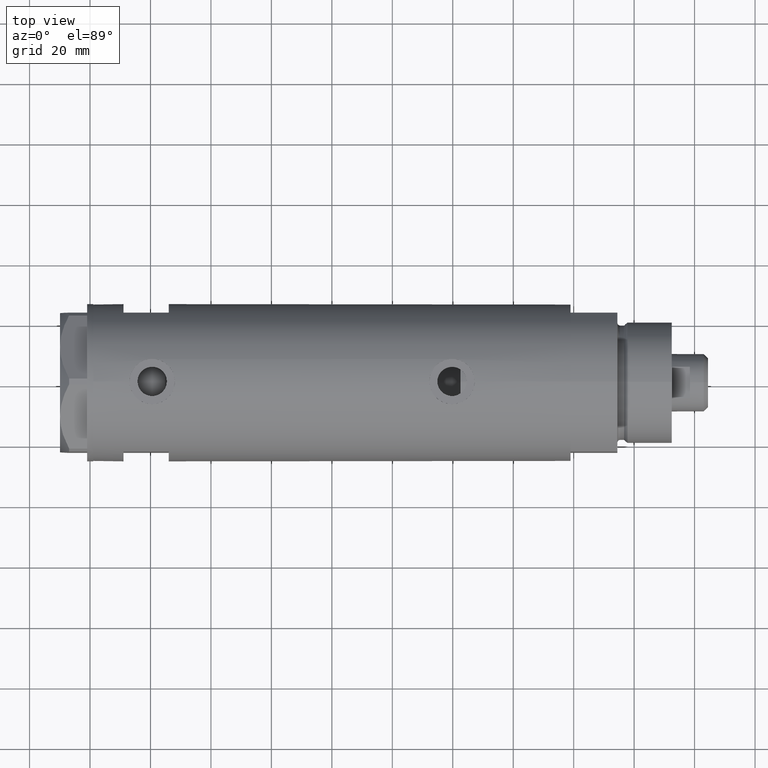
[diagram: clean part render]
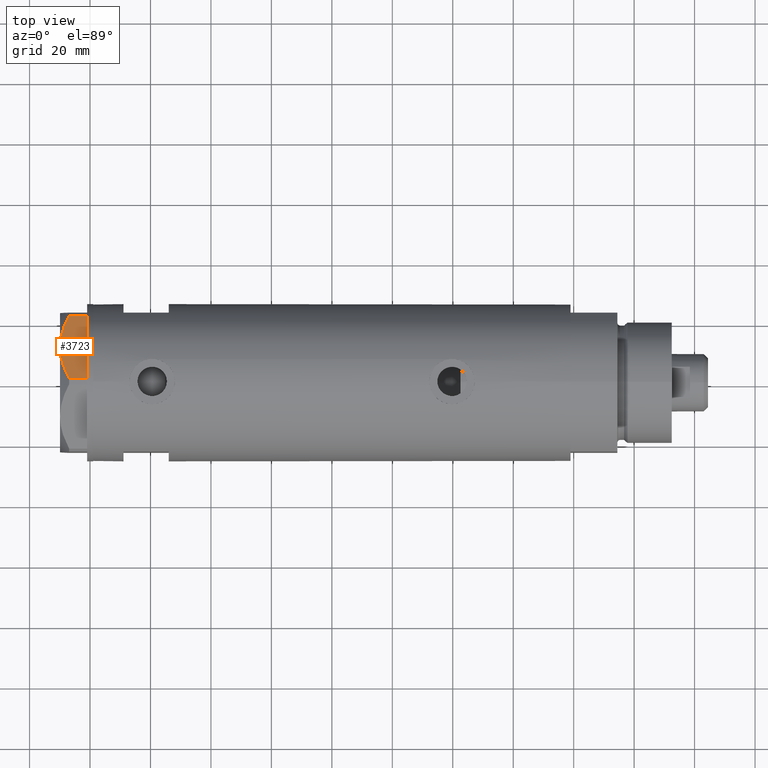
[diagram: same view with one face highlighted and labeled with its STEP entity id]
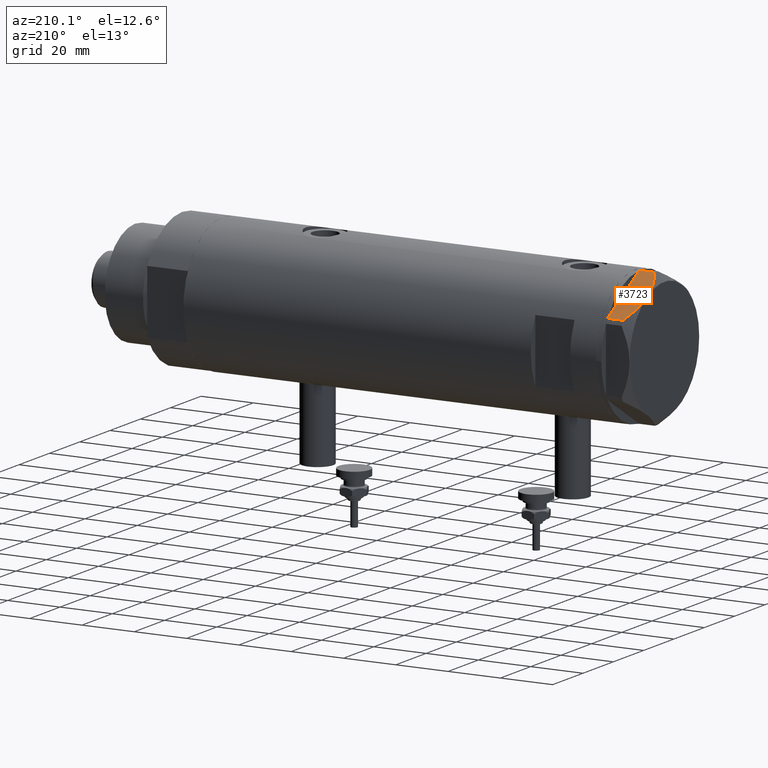
[diagram: same view with one face highlighted and labeled with its STEP entity id]
A machine part, top view. The second image highlights one B-rep face of the part: STEP entity #3723.
A second angle (auxiliary view) of the same face is appended — the face is thin or edge-on in the first view.
In plain terms, the highlighted planar face has unit normal (-0, -0.5, -0.866).
Its self-contained STEP definition (entity closure, byte-faithful):
#175 = EDGE_CURVE ( 'NONE', #2833, #5141, #3470, .T. ) ;
#186 = VERTEX_POINT ( 'NONE', #2549 ) ;
#292 = CARTESIAN_POINT ( 'NONE',  ( 22.03005154776152352, -13.83905619136116449, 9.000000000000000000 ) ) ;
#302 = CARTESIAN_POINT ( 'NONE',  ( 11.50000000000018296, -19.91858428704203732, 9.000000000000000000 ) ) ;
#338 = CARTESIAN_POINT ( 'NONE',  ( 4.320186229910052411, -24.06385169993491857, 7.629374868826107381 ) ) ;
#362 = EDGE_CURVE ( 'NONE', #186, #5136, #5009, .T. ) ;
#489 = LINE ( 'NONE', #5387, #3598 ) ;
#662 = CARTESIAN_POINT ( 'NONE',  ( 17.32831362639727146, -16.55360584591992890, 8.040681765829337024 ) ) ;
#711 = ORIENTED_EDGE ( 'NONE', *, *, #3164, .F. ) ;
#719 = EDGE_CURVE ( 'NONE', #5141, #2162, #3848, .T. ) ;
#774 = FACE_OUTER_BOUND ( 'NONE', #3741, .T. ) ;
#832 = EDGE_CURVE ( 'NONE', #186, #5412, #5790, .T. ) ;
#871 = EDGE_CURVE ( 'NONE', #5412, #1762, #489, .T. ) ;
#1050 = LINE ( 'NONE', #1496, #2784 ) ;
#1383 = EDGE_CURVE ( 'NONE', #1762, #2833, #1050, .T. ) ;
#1496 = CARTESIAN_POINT ( 'NONE',  ( 1.854543075583504180E-13, -26.55811238272274366, 0.000000000000000000 ) ) ;
#1633 = CARTESIAN_POINT ( 'NONE',  ( 17.77001848220201907, -16.29858742851870090, 7.892128867758446908 ) ) ;
#1725 = CARTESIAN_POINT ( 'NONE',  ( 15.11535457301044261, -17.83125835109846591, 8.707651728477005193 ) ) ;
#1762 = VERTEX_POINT ( 'NONE', #1951 ) ;
#1768 = ORIENTED_EDGE ( 'NONE', *, *, #1383, .T. ) ;
#1801 = DIRECTION ( 'NONE',  ( 0.000000000000000000, 0.000000000000000000, 1.000000000000000000 ) ) ;
#1849 = CARTESIAN_POINT ( 'NONE',  ( 10.58093321976977386, -20.44920774001120733, 8.981686407609503320 ) ) ;
#1913 = CARTESIAN_POINT ( 'NONE',  ( 1.854543075583504180E-13, -26.55811238272274366, 9.000000000000000000 ) ) ;
#1951 = CARTESIAN_POINT ( 'NONE',  ( 1.000000000000106803, -25.98076211353316367, 0.000000000000000000 ) ) ;
#2162 = VERTEX_POINT ( 'NONE', #5695 ) ;
#2230 = CARTESIAN_POINT ( 'NONE',  ( 22.03005154776152708, -13.83905619136116449, 0.000000000000000000 ) ) ;
#2361 = ORIENTED_EDGE ( 'NONE', *, *, #832, .T. ) ;
#2507 = ORIENTED_EDGE ( 'NONE', *, *, #175, .T. ) ;
#2549 = CARTESIAN_POINT ( 'NONE',  ( 0.9699484522386233598, -25.99811238272281244, 5.983800287807552465 ) ) ;
#2755 = DIRECTION ( 'NONE',  ( -0.5000000000000071054, 0.8660254037844345998, 0.000000000000000000 ) ) ;
#2784 = VECTOR ( 'NONE', #5498, 999.9999999999998863 ) ;
#2833 = VERTEX_POINT ( 'NONE', #6286 ) ;
#3128 = CARTESIAN_POINT ( 'NONE',  ( 21.20080365460326988, -14.31782268570101735, 6.431317509509397290 ) ) ;
#3164 = EDGE_CURVE ( 'NONE', #5136, #2162, #4734, .T. ) ;
#3427 = DIRECTION ( 'NONE',  ( 0.000000000000000000, 0.000000000000000000, -1.000000000000000000 ) ) ;
#3453 = CARTESIAN_POINT ( 'NONE',  ( 0.9699484522387654684, -25.99811238272272718, 0.000000000000000000 ) ) ;
#3470 = LINE ( 'NONE', #4996, #3490 ) ;
#3490 = VECTOR ( 'NONE', #5897, 999.9999999999998863 ) ;
#3496 = VECTOR ( 'NONE', #3427, 1000.000000000000000 ) ;
#3511 = AXIS2_PLACEMENT_3D ( 'NONE', #1913, #2755, #4693 ) ;
#3598 = VECTOR ( 'NONE', #5360, 999.9999999999998863 ) ;
#3604 = CARTESIAN_POINT ( 'NONE',  ( 13.32175508098997518, -18.86679350063488059, 9.000000000000094147 ) ) ;
#3699 = VECTOR ( 'NONE', #1801, 1000.000000000000000 ) ;
#3723 = ADVANCED_FACE ( 'NONE', ( #774 ), #4827, .F. ) ;
#3741 = EDGE_LOOP ( 'NONE', ( #5131, #2361, #5066, #1768, #2507, #5650, #711 ) ) ;
#3848 = LINE ( 'NONE', #292, #3699 ) ;
#4002 = CARTESIAN_POINT ( 'NONE',  ( 0.9699484522387652463, -25.99811238272272718, 9.000000000000000000 ) ) ;
#4160 = CARTESIAN_POINT ( 'NONE',  ( 11.50000000000018296, -19.91858428704203732, 9.000000000000000000 ) ) ;
#4206 = CARTESIAN_POINT ( 'NONE',  ( 22.03005154776152352, -13.83905619136116449, 5.983800287807632401 ) ) ;
#4238 = CARTESIAN_POINT ( 'NONE',  ( 9.197898616903062319, -21.24770314027487572, 8.852712638955805957 ) ) ;
#4263 = CARTESIAN_POINT ( 'NONE',  ( 7.836767740116735048, -22.03355241838978884, 8.637313967156950767 ) ) ;
#4331 = CARTESIAN_POINT ( 'NONE',  ( 9.656518383329995459, -20.98291889467261129, 8.907842277728439839 ) ) ;
#4669 = CARTESIAN_POINT ( 'NONE',  ( 18.64279229058404752, -15.79469123530767227, 7.570552255229726413 ) ) ;
#4693 = DIRECTION ( 'NONE',  ( -0.8660254037844344888, -0.5000000000000069944, 0.000000000000000000 ) ) ;
#4734 = B_SPLINE_CURVE_WITH_KNOTS ( 'NONE', 3,
 ( #5180, #3604, #1725, #662, #1633, #4669, #5094, #5529, #3128, #4206 ),
 .UNSPECIFIED., .F., .F.,
 ( 4, 2, 2, 2, 4 ),
 ( 0.01376519981810312224, 0.01998941321701588197, 0.02154546656674407104, 0.02310151991647226011, 0.02621362661592864518 ),
 .UNSPECIFIED. ) ;
#4827 = PLANE ( 'NONE',  #3511 ) ;
#4996 = CARTESIAN_POINT ( 'NONE',  ( 1.854543075583504180E-13, -26.55811238272274366, 0.000000000000000000 ) ) ;
#5009 = B_SPLINE_CURVE_WITH_KNOTS ( 'NONE', 3,
 ( #5299, #6214, #338, #5178, #4263, #4238, #4331, #1849, #6177, #302 ),
 .UNSPECIFIED., .F., .F.,
 ( 4, 2, 2, 2, 4 ),
 ( 0.001228959670438524313, 0.007497079744270824901, 0.01063113978118697747, 0.01219816979964504985, 0.01376519981810312224 ),
 .UNSPECIFIED. ) ;
#5066 = ORIENTED_EDGE ( 'NONE', *, *, #871, .T. ) ;
#5094 = CARTESIAN_POINT ( 'NONE',  ( 19.07486218897004093, -15.54523556316577704, 7.397272853991418096 ) ) ;
#5131 = ORIENTED_EDGE ( 'NONE', *, *, #362, .F. ) ;
#5136 = VERTEX_POINT ( 'NONE', #4160 ) ;
#5141 = VERTEX_POINT ( 'NONE', #2230 ) ;
#5178 = CARTESIAN_POINT ( 'NONE',  ( 6.946777556903783513, -22.54738849024392877, 8.426899937603783641 ) ) ;
#5180 = CARTESIAN_POINT ( 'NONE',  ( 11.50000000000018296, -19.91858428704203732, 9.000000000000000000 ) ) ;
#5299 = CARTESIAN_POINT ( 'NONE',  ( 0.9699484522386233598, -25.99811238272281244, 5.983800287807552465 ) ) ;
#5360 = DIRECTION ( 'NONE',  ( 0.8660254037844345998, 0.5000000000000069944, 0.000000000000000000 ) ) ;
#5387 = CARTESIAN_POINT ( 'NONE',  ( 1.854543075583504180E-13, -26.55811238272274366, 0.000000000000000000 ) ) ;
#5412 = VERTEX_POINT ( 'NONE', #3453 ) ;
#5498 = DIRECTION ( 'NONE',  ( 0.8660254037844345998, 0.5000000000000069944, 0.000000000000000000 ) ) ;
#5529 = CARTESIAN_POINT ( 'NONE',  ( 20.35958612119336308, -14.80349985506228094, 6.844201024438393510 ) ) ;
#5650 = ORIENTED_EDGE ( 'NONE', *, *, #719, .T. ) ;
#5695 = CARTESIAN_POINT ( 'NONE',  ( 22.03005154776152352, -13.83905619136116449, 5.983800287807632401 ) ) ;
#5790 = LINE ( 'NONE', #4002, #3496 ) ;
#5897 = DIRECTION ( 'NONE',  ( 0.8660254037844345998, 0.5000000000000069944, 0.000000000000000000 ) ) ;
#6177 = CARTESIAN_POINT ( 'NONE',  ( 11.04134848610953235, -20.18338686205092714, 9.000000000000095923 ) ) ;
#6214 = CARTESIAN_POINT ( 'NONE',  ( 2.626494320835812690, -25.04170517956324460, 6.877782426143459915 ) ) ;
#6286 = CARTESIAN_POINT ( 'NONE',  ( 22.00000000000017053, -13.85640646055075464, 0.000000000000000000 ) ) ;